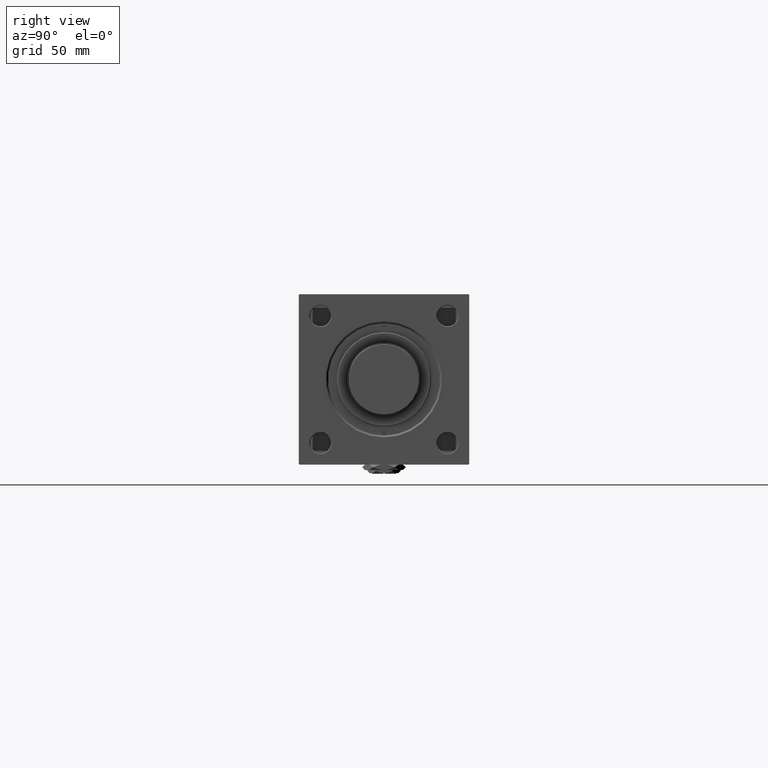
[diagram: clean part render]
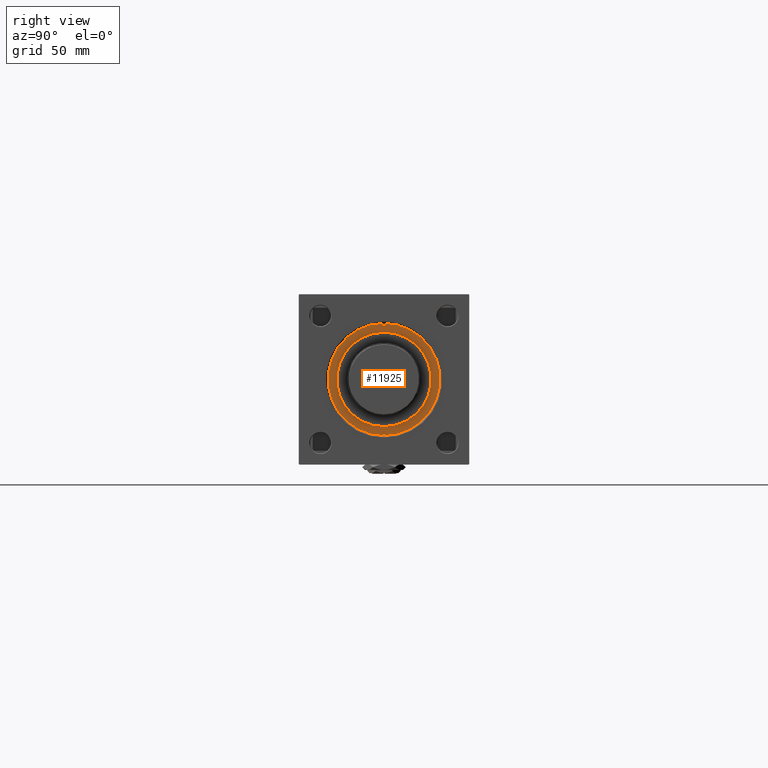
[diagram: same view with one face highlighted and labeled with its STEP entity id]
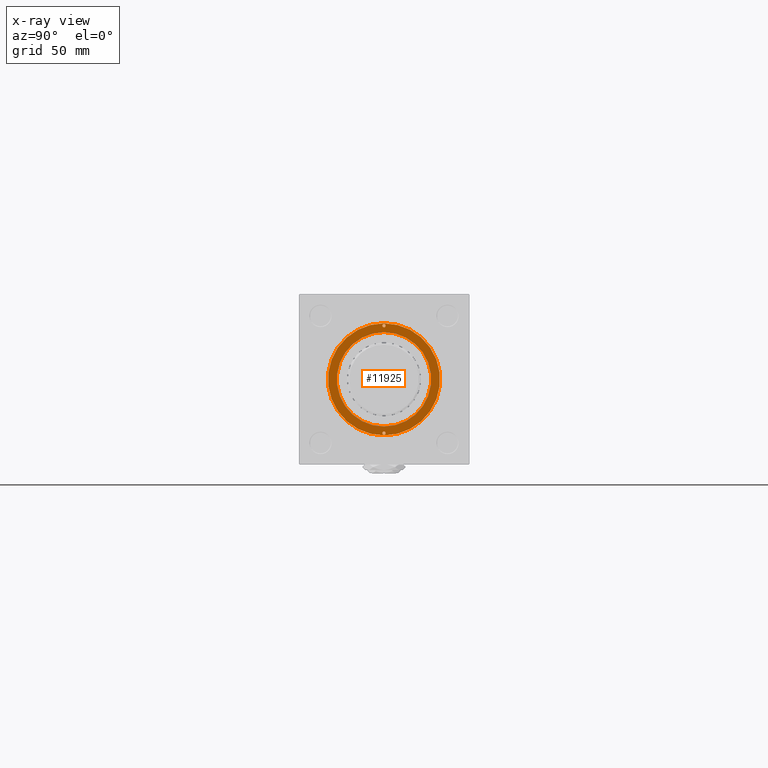
[diagram: x-ray of the same camera — body ghosted, the highlighted face saturated]
A machine part, right view. The second image highlights one B-rep face of the part: STEP entity #11925.
The next image is the same camera in x-ray: the body ghosted, the highlighted face saturated — about 0% of this face is hidden behind the body in this view.
In plain terms, the highlighted planar face has unit normal (1, 0, 0).
Its self-contained STEP definition (entity closure, byte-faithful):
#626 = CIRCLE ( 'NONE', #9190, 1.249999999999994227 ) ;
#2434 = CARTESIAN_POINT ( 'NONE',  ( -42.75000000000000000, 0.000000000000000000, 28.69999999999999929 ) ) ;
#2620 = AXIS2_PLACEMENT_3D ( 'NONE', #12306, #32181, #12566 ) ;
#3157 = AXIS2_PLACEMENT_3D ( 'NONE', #50313, #9228, #4934 ) ;
#3279 = DIRECTION ( 'NONE',  ( 0.000000000000000000, 0.000000000000000000, 1.000000000000000000 ) ) ;
#3795 = ORIENTED_EDGE ( 'NONE', *, *, #36203, .F. ) ;
#4047 = DIRECTION ( 'NONE',  ( 1.000000000000000000, 0.000000000000000000, 0.000000000000000000 ) ) ;
#4198 = DIRECTION ( 'NONE',  ( 0.000000000000000000, 0.000000000000000000, 1.000000000000000000 ) ) ;
#4934 = DIRECTION ( 'NONE',  ( 1.000000000000000000, 0.000000000000000000, 0.000000000000000000 ) ) ;
#5206 = VERTEX_POINT ( 'NONE', #24445 ) ;
#6367 = CIRCLE ( 'NONE', #44113, 1.249999999999994227 ) ;
#7539 = EDGE_CURVE ( 'NONE', #24652, #19937, #30897, .T. ) ;
#9190 = AXIS2_PLACEMENT_3D ( 'NONE', #30581, #14191, #46679 ) ;
#9228 = DIRECTION ( 'NONE',  ( 0.000000000000000000, 0.000000000000000000, 1.000000000000000000 ) ) ;
#11925 = ADVANCED_FACE ( 'NONE', ( #36686, #28653, #41503, #29176 ), #28118, .T. ) ;
#11992 = ORIENTED_EDGE ( 'NONE', *, *, #43931, .F. ) ;
#12306 = CARTESIAN_POINT ( 'NONE',  ( 0.000000000000000000, 0.000000000000000000, 28.69999999999999929 ) ) ;
#12566 = DIRECTION ( 'NONE',  ( 1.000000000000000000, 0.000000000000000000, 0.000000000000000000 ) ) ;
#12853 = CIRCLE ( 'NONE', #14579, 42.75000000000000000 ) ;
#13506 = CARTESIAN_POINT ( 'NONE',  ( 42.75000000000000000, 5.235365066354935472E-15, 28.69999999999999929 ) ) ;
#13707 = EDGE_LOOP ( 'NONE', ( #11992, #46648 ) ) ;
#13971 = ORIENTED_EDGE ( 'NONE', *, *, #22793, .T. ) ;
#13997 = VERTEX_POINT ( 'NONE', #20778 ) ;
#14191 = DIRECTION ( 'NONE',  ( 0.000000000000000000, 0.000000000000000000, 1.000000000000000000 ) ) ;
#14579 = AXIS2_PLACEMENT_3D ( 'NONE', #40314, #3279, #19933 ) ;
#15230 = AXIS2_PLACEMENT_3D ( 'NONE', #19648, #48107, #4047 ) ;
#18242 = DIRECTION ( 'NONE',  ( 0.000000000000000000, 0.000000000000000000, 1.000000000000000000 ) ) ;
#19648 = CARTESIAN_POINT ( 'NONE',  ( 0.000000000000000000, 0.000000000000000000, 28.69999999999999929 ) ) ;
#19933 = DIRECTION ( 'NONE',  ( 1.000000000000000000, 0.000000000000000000, 0.000000000000000000 ) ) ;
#19937 = VERTEX_POINT ( 'NONE', #49353 ) ;
#20778 = CARTESIAN_POINT ( 'NONE',  ( 42.24999999999999289, 0.000000000000000000, 28.69999999999999929 ) ) ;
#21247 = CIRCLE ( 'NONE', #15230, 42.75000000000000000 ) ;
#22793 = EDGE_CURVE ( 'NONE', #28096, #34073, #12853, .T. ) ;
#24445 = CARTESIAN_POINT ( 'NONE',  ( -42.25000000000000000, 1.530808498934193050E-16, 28.69999999999999929 ) ) ;
#24652 = VERTEX_POINT ( 'NONE', #39631 ) ;
#25348 = CARTESIAN_POINT ( 'NONE',  ( 0.000000000000000000, 0.000000000000000000, 28.69999999999999929 ) ) ;
#26627 = DIRECTION ( 'NONE',  ( 1.000000000000000000, 0.000000000000000000, 0.000000000000000000 ) ) ;
#27540 = AXIS2_PLACEMENT_3D ( 'NONE', #49314, #4198, #36426 ) ;
#27953 = ORIENTED_EDGE ( 'NONE', *, *, #51953, .T. ) ;
#28096 = VERTEX_POINT ( 'NONE', #2434 ) ;
#28118 = PLANE ( 'NONE',  #27540 ) ;
#28653 = FACE_BOUND ( 'NONE', #13707, .T. ) ;
#29176 = FACE_OUTER_BOUND ( 'NONE', #43269, .T. ) ;
#29491 = AXIS2_PLACEMENT_3D ( 'NONE', #34937, #30926, #26627 ) ;
#30581 = CARTESIAN_POINT ( 'NONE',  ( -41.00000000000000000, 0.000000000000000000, 28.69999999999999929 ) ) ;
#30599 = CARTESIAN_POINT ( 'NONE',  ( -41.00000000000000000, 0.000000000000000000, 28.69999999999999929 ) ) ;
#30897 = CIRCLE ( 'NONE', #2620, 36.00000000000000000 ) ;
#30926 = DIRECTION ( 'NONE',  ( 0.000000000000000000, 0.000000000000000000, 1.000000000000000000 ) ) ;
#32158 = CARTESIAN_POINT ( 'NONE',  ( 39.75000000000000000, 1.530808498934193050E-16, 28.69999999999999929 ) ) ;
#32181 = DIRECTION ( 'NONE',  ( 0.000000000000000000, 0.000000000000000000, 1.000000000000000000 ) ) ;
#33084 = EDGE_LOOP ( 'NONE', ( #3795, #52291 ) ) ;
#33400 = DIRECTION ( 'NONE',  ( 0.000000000000000000, 0.000000000000000000, 1.000000000000000000 ) ) ;
#33769 = CIRCLE ( 'NONE', #29491, 1.249999999999994227 ) ;
#34073 = VERTEX_POINT ( 'NONE', #13506 ) ;
#34937 = CARTESIAN_POINT ( 'NONE',  ( 41.00000000000000000, 0.000000000000000000, 28.69999999999999929 ) ) ;
#35079 = EDGE_CURVE ( 'NONE', #39683, #13997, #33769, .T. ) ;
#35412 = EDGE_LOOP ( 'NONE', ( #46083, #38417 ) ) ;
#36203 = EDGE_CURVE ( 'NONE', #40114, #5206, #6367, .T. ) ;
#36329 = AXIS2_PLACEMENT_3D ( 'NONE', #25348, #33400, #45474 ) ;
#36426 = DIRECTION ( 'NONE',  ( 1.000000000000000000, 0.000000000000000000, -0.000000000000000000 ) ) ;
#36686 = FACE_BOUND ( 'NONE', #33084, .T. ) ;
#37365 = CARTESIAN_POINT ( 'NONE',  ( -39.75000000000000711, 0.000000000000000000, 28.69999999999999929 ) ) ;
#38417 = ORIENTED_EDGE ( 'NONE', *, *, #7539, .F. ) ;
#38777 = EDGE_CURVE ( 'NONE', #19937, #24652, #52633, .T. ) ;
#39631 = CARTESIAN_POINT ( 'NONE',  ( 36.00000000000000000, 4.408728476930470856E-15, 28.69999999999999929 ) ) ;
#39683 = VERTEX_POINT ( 'NONE', #32158 ) ;
#40008 = CIRCLE ( 'NONE', #3157, 1.249999999999994227 ) ;
#40114 = VERTEX_POINT ( 'NONE', #37365 ) ;
#40314 = CARTESIAN_POINT ( 'NONE',  ( 0.000000000000000000, 0.000000000000000000, 28.69999999999999929 ) ) ;
#41503 = FACE_BOUND ( 'NONE', #35412, .T. ) ;
#43269 = EDGE_LOOP ( 'NONE', ( #13971, #27953 ) ) ;
#43931 = EDGE_CURVE ( 'NONE', #13997, #39683, #40008, .T. ) ;
#44113 = AXIS2_PLACEMENT_3D ( 'NONE', #30599, #18242, #46159 ) ;
#45474 = DIRECTION ( 'NONE',  ( 1.000000000000000000, 0.000000000000000000, 0.000000000000000000 ) ) ;
#46083 = ORIENTED_EDGE ( 'NONE', *, *, #38777, .F. ) ;
#46159 = DIRECTION ( 'NONE',  ( 1.000000000000000000, 0.000000000000000000, 0.000000000000000000 ) ) ;
#46648 = ORIENTED_EDGE ( 'NONE', *, *, #35079, .F. ) ;
#46679 = DIRECTION ( 'NONE',  ( 1.000000000000000000, 0.000000000000000000, 0.000000000000000000 ) ) ;
#48107 = DIRECTION ( 'NONE',  ( 0.000000000000000000, 0.000000000000000000, 1.000000000000000000 ) ) ;
#49314 = CARTESIAN_POINT ( 'NONE',  ( 0.000000000000000000, 0.000000000000000000, 28.69999999999999929 ) ) ;
#49353 = CARTESIAN_POINT ( 'NONE',  ( -36.00000000000000000, 0.000000000000000000, 28.69999999999999929 ) ) ;
#50159 = EDGE_CURVE ( 'NONE', #5206, #40114, #626, .T. ) ;
#50313 = CARTESIAN_POINT ( 'NONE',  ( 41.00000000000000000, 0.000000000000000000, 28.69999999999999929 ) ) ;
#51953 = EDGE_CURVE ( 'NONE', #34073, #28096, #21247, .T. ) ;
#52291 = ORIENTED_EDGE ( 'NONE', *, *, #50159, .F. ) ;
#52633 = CIRCLE ( 'NONE', #36329, 36.00000000000000000 ) ;